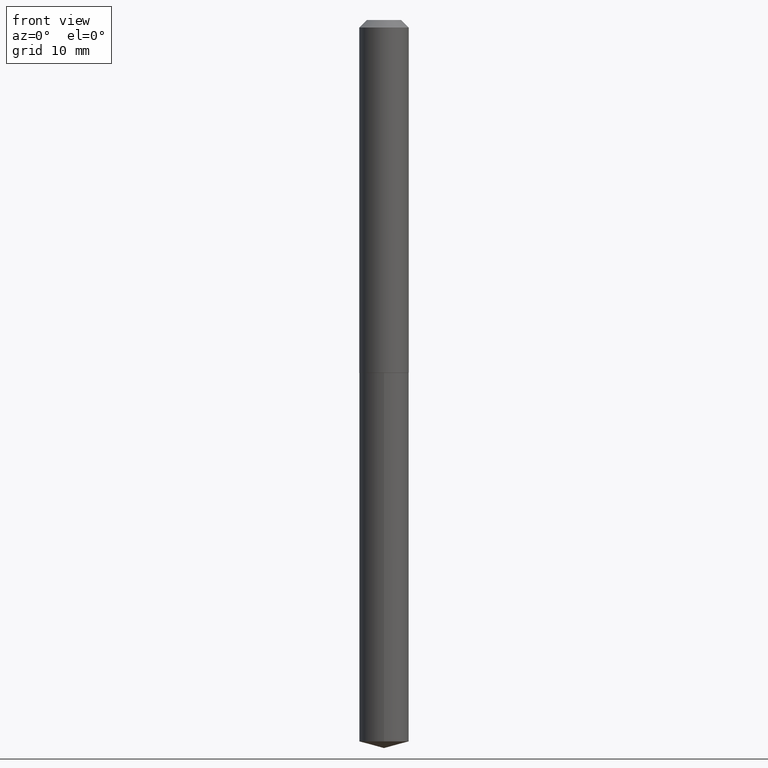
[diagram: clean part render]
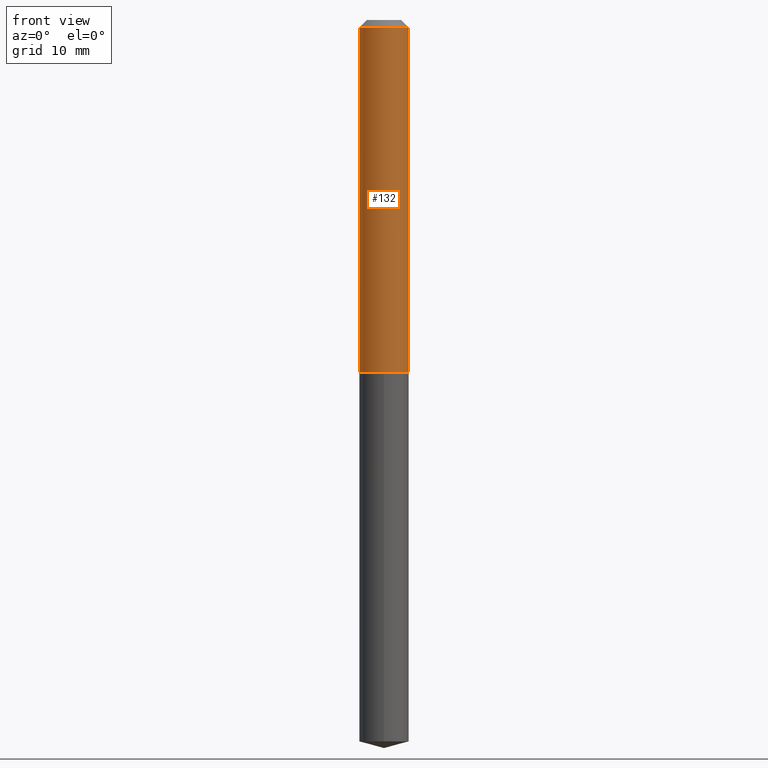
[diagram: same view with one face highlighted and labeled with its STEP entity id]
A machine part, front view. The second image highlights one B-rep face of the part: STEP entity #132.
In plain terms, the highlighted cylindrical surface (edge-blend (fillet) strip) has radius 2.5908 mm, axis along (-0, 0, 1).
Its self-contained STEP definition (entity closure, byte-faithful):
#2 = VERTEX_POINT ( 'NONE', #36 ) ;
#8 = VERTEX_POINT ( 'NONE', #282 ) ;
#11 = DIRECTION ( 'NONE',  ( -2.445468806185136597E-29, 3.491481338843145583E-15, 1.000000000000000000 ) ) ;
#21 = DIRECTION ( 'NONE',  ( -2.445468806185136597E-29, 3.491481338843145583E-15, 1.000000000000000000 ) ) ;
#36 = CARTESIAN_POINT ( 'NONE',  ( -0.1019999999999999934, -1.867234868448377340E-15, -0.03125000000000019429 ) ) ;
#60 = EDGE_CURVE ( 'NONE', #8, #65, #258, .T. ) ;
#65 = VERTEX_POINT ( 'NONE', #330 ) ;
#81 = AXIS2_PLACEMENT_3D ( 'NONE', #164, #21, #270 ) ;
#97 = ORIENTED_EDGE ( 'NONE', *, *, #387, .F. ) ;
#102 = VERTEX_POINT ( 'NONE', #140 ) ;
#115 = DIRECTION ( 'NONE',  ( -2.445468806185136877E-29, 3.491481338843145188E-15, 1.000000000000000000 ) ) ;
#120 = VECTOR ( 'NONE', #115, 39.37007874015748143 ) ;
#125 = CARTESIAN_POINT ( 'NONE',  ( 7.642090019328598283E-31, -1.091087918388489651E-16, -0.03125000000000019429 ) ) ;
#127 = DIRECTION ( 'NONE',  ( 1.000000000000000000, -6.982962677686266711E-15, 0.000000000000000000 ) ) ;
#132 = ADVANCED_FACE ( 'NONE', ( #390 ), #174, .T. ) ;
#140 = CARTESIAN_POINT ( 'NONE',  ( 0.1019999999999999934, -8.213709849628480961E-16, -0.03125000000000019429 ) ) ;
#142 = DIRECTION ( 'NONE',  ( -2.445468806185136597E-29, 3.491481338843145583E-15, 1.000000000000000000 ) ) ;
#146 = AXIS2_PLACEMENT_3D ( 'NONE', #201, #142, #264 ) ;
#157 = CIRCLE ( 'NONE', #318, 0.1019999999999999934 ) ;
#164 = CARTESIAN_POINT ( 'NONE',  ( 3.554488909790096218E-29, -5.074868126008512823E-15, -1.453500000000000236 ) ) ;
#168 = ORIENTED_EDGE ( 'NONE', *, *, #60, .T. ) ;
#174 = CYLINDRICAL_SURFACE ( 'NONE', #146, 0.1020000000000000767 ) ;
#175 = EDGE_CURVE ( 'NONE', #8, #2, #328, .T. ) ;
#201 = CARTESIAN_POINT ( 'NONE',  ( 0.000000000000000000, 0.000000000000000000, 0.000000000000000000 ) ) ;
#223 = EDGE_CURVE ( 'NONE', #65, #102, #350, .T. ) ;
#233 = CARTESIAN_POINT ( 'NONE',  ( 0.1020000000000000767, -7.122621931239997843E-16, 4.973700311311858208E-30 ) ) ;
#258 = CIRCLE ( 'NONE', #81, 0.1020000000000001739 ) ;
#264 = DIRECTION ( 'NONE',  ( 1.000000000000000000, -6.982962677686267499E-15, 4.876176775795935793E-29 ) ) ;
#270 = DIRECTION ( 'NONE',  ( 1.000000000000000000, -6.982962677686263555E-15, 0.000000000000000000 ) ) ;
#279 = EDGE_LOOP ( 'NONE', ( #344, #168, #368, #97 ) ) ;
#282 = CARTESIAN_POINT ( 'NONE',  ( -0.1020000000000001739, -4.350114535533209201E-15, -1.453500000000000236 ) ) ;
#283 = VECTOR ( 'NONE', #388, 39.37007874015748143 ) ;
#318 = AXIS2_PLACEMENT_3D ( 'NONE', #125, #11, #127 ) ;
#328 = LINE ( 'NONE', #381, #283 ) ;
#330 = CARTESIAN_POINT ( 'NONE',  ( 0.1020000000000001739, -5.787130319132512311E-15, -1.453500000000000236 ) ) ;
#344 = ORIENTED_EDGE ( 'NONE', *, *, #175, .F. ) ;
#350 = LINE ( 'NONE', #233, #120 ) ;
#368 = ORIENTED_EDGE ( 'NONE', *, *, #223, .T. ) ;
#381 = CARTESIAN_POINT ( 'NONE',  ( -0.1020000000000000767, 7.247535904753027347E-16, -5.017313792060008286E-30 ) ) ;
#387 = EDGE_CURVE ( 'NONE', #2, #102, #157, .T. ) ;
#388 = DIRECTION ( 'NONE',  ( -2.445468806185136877E-29, 3.491481338843145188E-15, 1.000000000000000000 ) ) ;
#390 = FACE_OUTER_BOUND ( 'NONE', #279, .T. ) ;